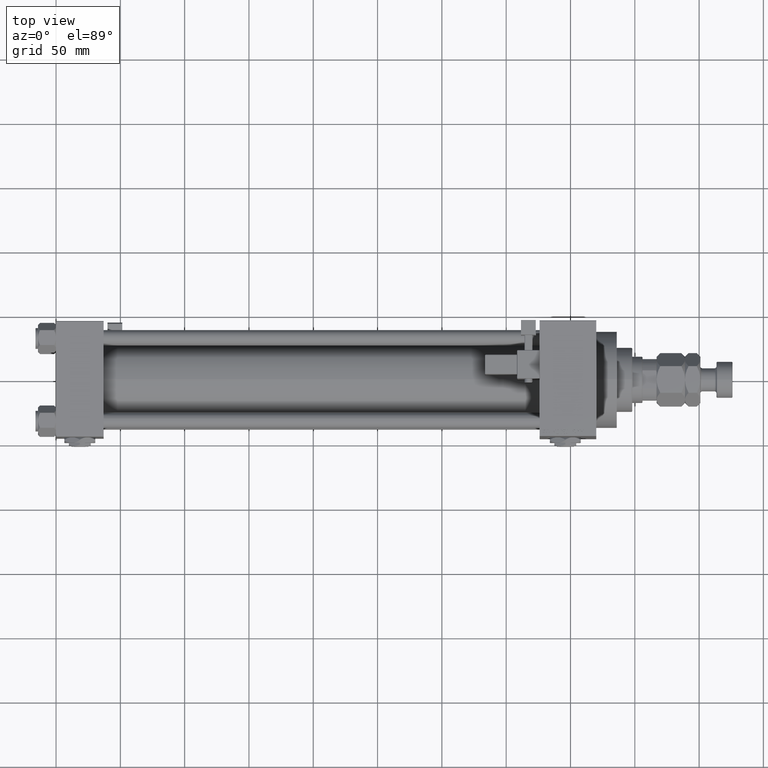
[diagram: clean part render]
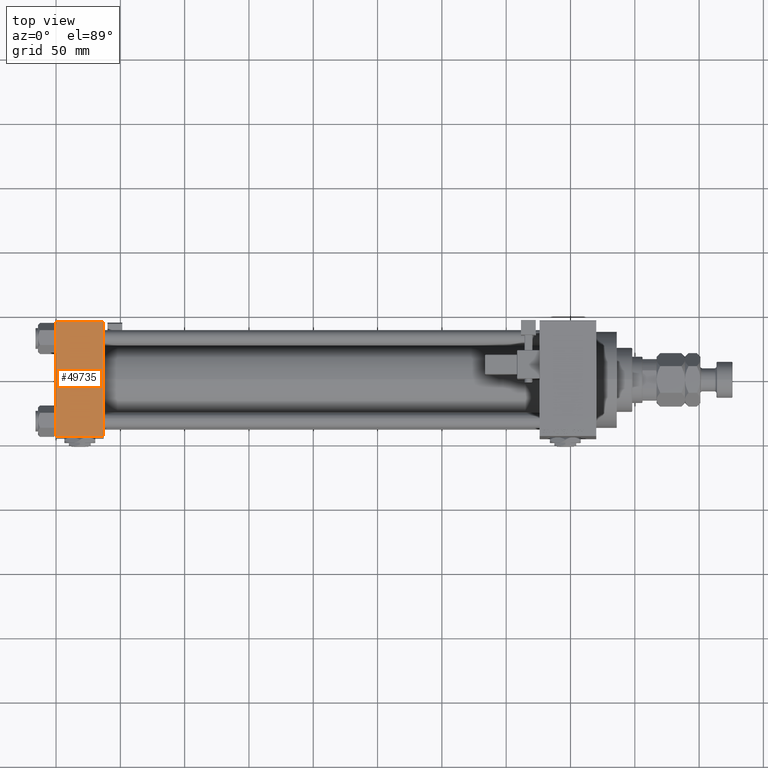
[diagram: same view with one face highlighted and labeled with its STEP entity id]
A machine part, top view. The second image highlights one B-rep face of the part: STEP entity #49735.
In plain terms, the highlighted planar face has unit normal (0, 0, -1).
Its self-contained STEP definition (entity closure, byte-faithful):
#376 = VERTEX_POINT ( 'NONE', #45003 ) ;
#1053 = LINE ( 'NONE', #26627, #20051 ) ;
#3036 = LINE ( 'NONE', #19444, #31451 ) ;
#4384 = FACE_OUTER_BOUND ( 'NONE', #23373, .T. ) ;
#6364 = LINE ( 'NONE', #34918, #44569 ) ;
#6721 = VECTOR ( 'NONE', #33680, 1000.000000000000000 ) ;
#6963 = EDGE_CURVE ( 'NONE', #52634, #36234, #3036, .T. ) ;
#7313 = CARTESIAN_POINT ( 'NONE',  ( 0.000000000000000000, 44.49999999999998579, 45.00000000000001421 ) ) ;
#10480 = CARTESIAN_POINT ( 'NONE',  ( 0.000000000000000000, -44.49999999999995737, 45.00000000000000000 ) ) ;
#11085 = ORIENTED_EDGE ( 'NONE', *, *, #40270, .T. ) ;
#12555 = EDGE_CURVE ( 'NONE', #52634, #376, #20215, .T. ) ;
#19444 = CARTESIAN_POINT ( 'NONE',  ( 37.00000000000000000, 44.99999999999998579, 45.00000000000001421 ) ) ;
#19532 = DIRECTION ( 'NONE',  ( 0.000000000000000000, 1.000000000000000000, 1.541976423090495633E-16 ) ) ;
#20051 = VECTOR ( 'NONE', #43004, 1000.000000000000000 ) ;
#20215 = LINE ( 'NONE', #7313, #6721 ) ;
#22172 = CARTESIAN_POINT ( 'NONE',  ( 37.00000000000000000, -44.49999999999995737, 45.00000000000000000 ) ) ;
#23373 = EDGE_LOOP ( 'NONE', ( #11085, #49092, #39810, #40294 ) ) ;
#23583 = PLANE ( 'NONE',  #27347 ) ;
#26627 = CARTESIAN_POINT ( 'NONE',  ( 0.000000000000000000, 44.99999999999998579, 45.00000000000001421 ) ) ;
#27347 = AXIS2_PLACEMENT_3D ( 'NONE', #48050, #27647, #19532 ) ;
#27647 = DIRECTION ( 'NONE',  ( 0.000000000000000000, 1.541976423090495633E-16, -1.000000000000000000 ) ) ;
#29016 = CARTESIAN_POINT ( 'NONE',  ( 37.00000000000000000, 44.49999999999998579, 45.00000000000001421 ) ) ;
#30241 = VERTEX_POINT ( 'NONE', #10480 ) ;
#31451 = VECTOR ( 'NONE', #52256, 1000.000000000000000 ) ;
#33680 = DIRECTION ( 'NONE',  ( -1.000000000000000000, 0.000000000000000000, 0.000000000000000000 ) ) ;
#34918 = CARTESIAN_POINT ( 'NONE',  ( 37.00000000000000000, -44.49999999999998579, 45.00000000000000000 ) ) ;
#36234 = VERTEX_POINT ( 'NONE', #22172 ) ;
#37657 = EDGE_CURVE ( 'NONE', #30241, #36234, #6364, .T. ) ;
#39214 = DIRECTION ( 'NONE',  ( 1.000000000000000000, 0.000000000000000000, 0.000000000000000000 ) ) ;
#39810 = ORIENTED_EDGE ( 'NONE', *, *, #6963, .F. ) ;
#40270 = EDGE_CURVE ( 'NONE', #376, #30241, #1053, .T. ) ;
#40294 = ORIENTED_EDGE ( 'NONE', *, *, #12555, .T. ) ;
#43004 = DIRECTION ( 'NONE',  ( 0.000000000000000000, -1.000000000000000000, -1.541976423090495387E-16 ) ) ;
#44569 = VECTOR ( 'NONE', #39214, 1000.000000000000000 ) ;
#45003 = CARTESIAN_POINT ( 'NONE',  ( 0.000000000000000000, 44.49999999999998579, 45.00000000000001421 ) ) ;
#48050 = CARTESIAN_POINT ( 'NONE',  ( 37.00000000000000000, 44.99999999999998579, 45.00000000000001421 ) ) ;
#49092 = ORIENTED_EDGE ( 'NONE', *, *, #37657, .T. ) ;
#49735 = ADVANCED_FACE ( 'NONE', ( #4384 ), #23583, .F. ) ;
#52256 = DIRECTION ( 'NONE',  ( 0.000000000000000000, -1.000000000000000000, -1.541976423090495387E-16 ) ) ;
#52634 = VERTEX_POINT ( 'NONE', #29016 ) ;